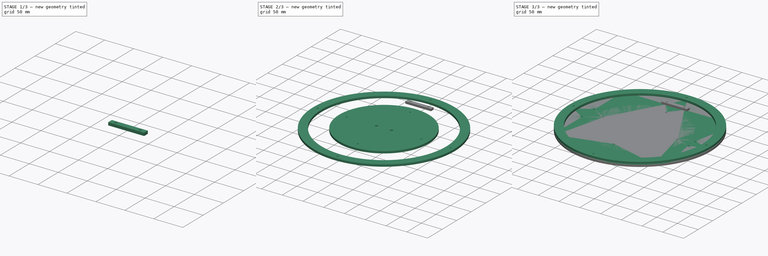
[diagram: build sequence overview — one tinted view per stage of 3, left to right]
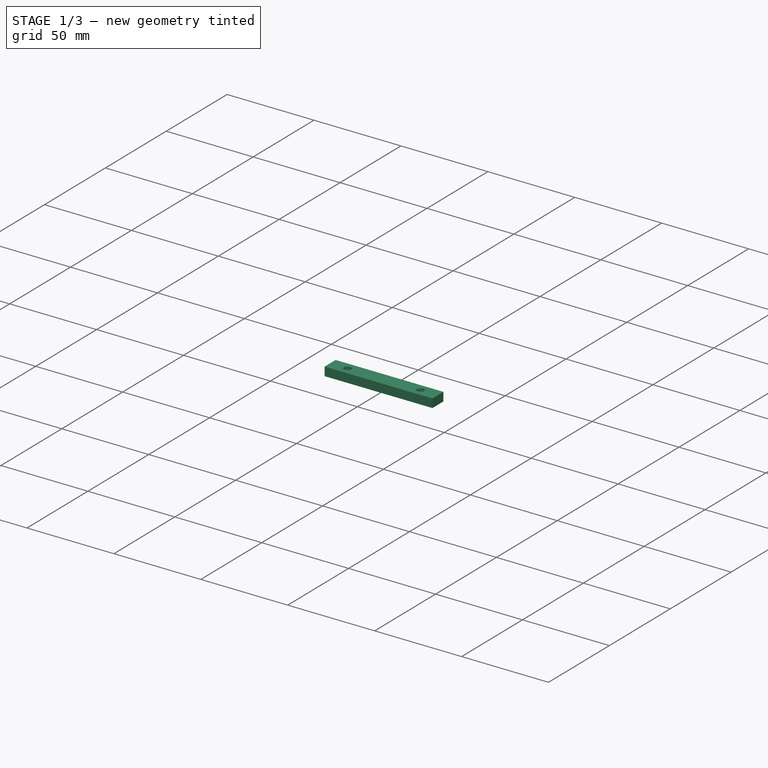
[diagram: stage 1 of 3 — iso view after this stage's code; geometry added in this stage tinted green]
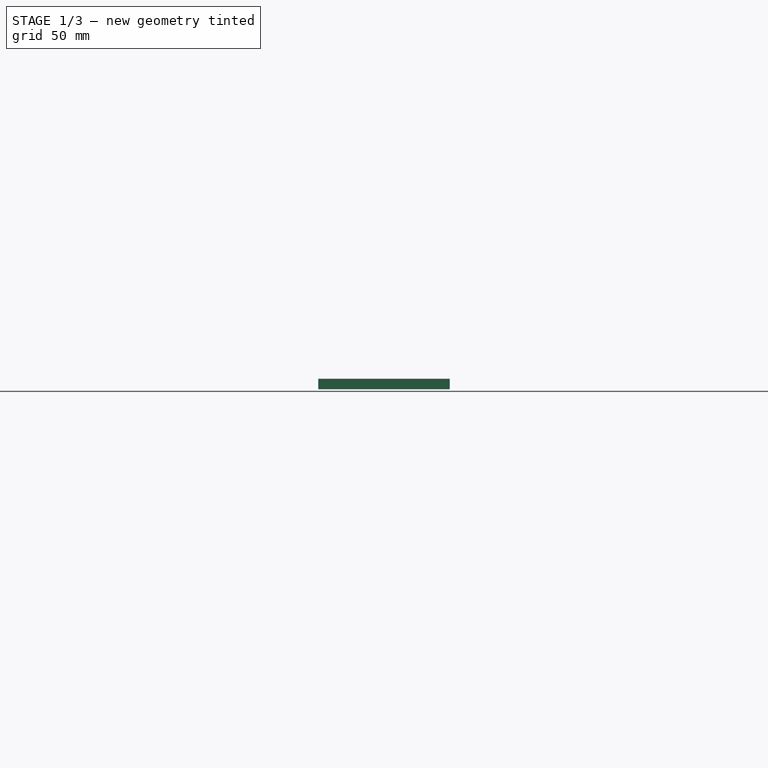
[diagram: stage 1 of 3 — front view after this stage's code; geometry added in this stage tinted green]
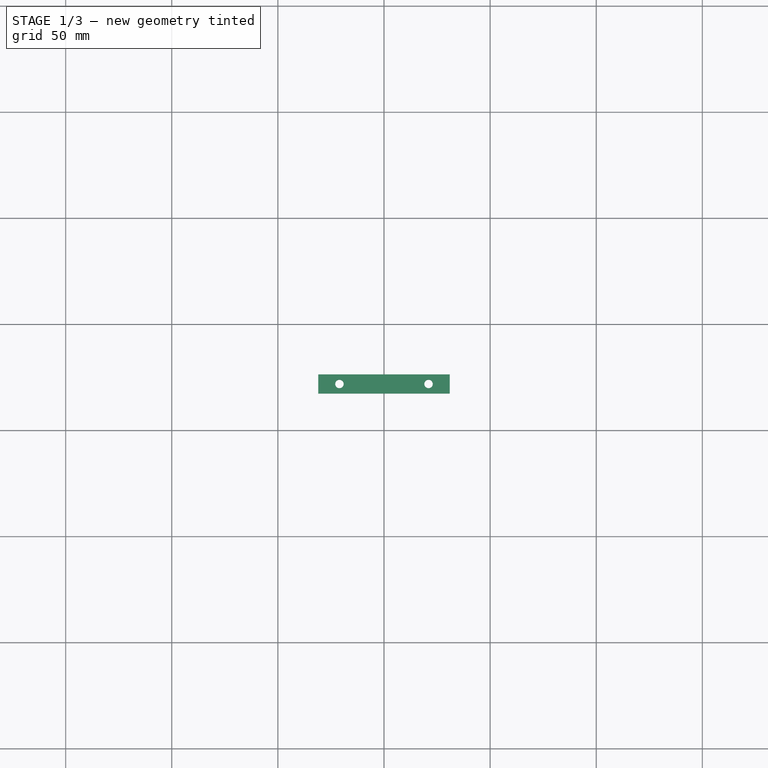
[diagram: stage 1 of 3 — top view after this stage's code; geometry added in this stage tinted green]
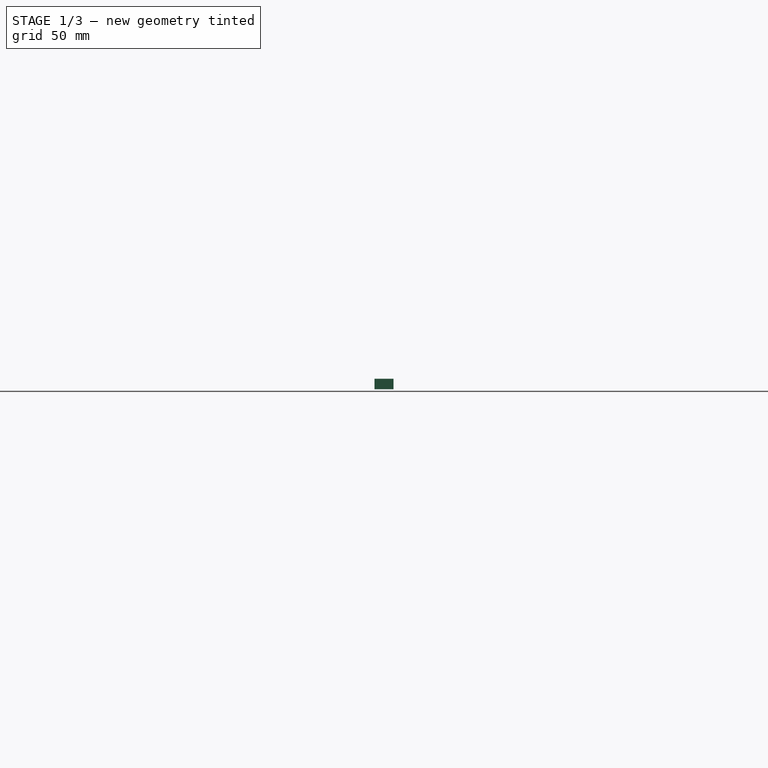
[diagram: stage 1 of 3 — right view after this stage's code; geometry added in this stage tinted green]
FCSTD DOCUMENT  (FreeCAD 0.19R21857 (Git))
Label: flexible_01
License: All rights reserved
LicenseURL: http://en.wikipedia.org/wiki/All_rights_reserved
objects: TechDraw::DrawViewPart×10, PartDesign::Body×8, Sketcher::SketchObject×6, PartDesign::Pad×4, App::DocumentObjectGroup×3, PartDesign::FeatureBase×2, Spreadsheet::Sheet×1, TechDraw::DrawSVGTemplate×1, TechDraw::DrawPage×1
note: 24 computed .brp shape members not serialized (recipe doc carries the construction recipe); baked Part::Feature solids carry a one-line shape summary decoded from their .brp

FEATURE [PartDesign::Body] Body004  label="layer_01"
  BaseFeature = -> Body
  Group = -> [Clone001]
  Origin = -> Origin004
  Placement = pos=(0,0,4) rot=(0,0,1;0rad)
  Tip = -> Clone001
FEATURE [App::DocumentObjectGroup] Group001  label="Layers"
  Group = -> [Body,Body004]
FEATURE [Sketcher::SketchObject] Sketch003
  MapMode = 5
  Support = -> [XY_Plane006]
  expr: Constraints[6] = Spreadsheet.structure_thickness
  expr: Constraints[7] = Spreadsheet.structure_width - Spreadsheet.structure_perf_width * 2
  expr: Constraints[11] = Spreadsheet.mold_hole_dia
  expr: Constraints[14] = (Spreadsheet.structure_width - Spreadsheet.structure_perf_width * 2) / 2 - Spreadsheet.board_structure_spacing / 2
  expr: Constraints[15] = (Spreadsheet.structure_width - Spreadsheet.structure_perf_width * 2) / 2 - Spreadsheet.board_structure_spacing / 2
  sketch-geometry (6):
    g0: LineSegment StartX=-31 StartY=4.5 StartZ=0 EndX=31 EndY=4.5 EndZ=0
    g1: LineSegment StartX=31 StartY=4.5 StartZ=0 EndX=31 EndY=-4.5 EndZ=0
    g2: LineSegment StartX=31 StartY=-4.5 StartZ=0 EndX=-31 EndY=-4.5 EndZ=0
    g3: LineSegment StartX=-31 StartY=-4.5 StartZ=0 EndX=-31 EndY=4.5 EndZ=0
    g4: Circle CenterX=-21 CenterY=0 CenterZ=0 NormalX=0 NormalY=0 NormalZ=1 AngleXU=0 Radius=2
    g5: Circle CenterX=21 CenterY=0 CenterZ=0 NormalX=0 NormalY=0 NormalZ=1 AngleXU=0 Radius=2
  constraints (16):
    c: Coincident(g0,g1)
    c: Coincident(g1,g2)
    c: Coincident(g2,g3)
    c: Coincident(g3,g0)
    c: Horizontal(g0)
    c: Vertical(g1)
    c: DistanceY(g3,g3) = 9
    c: DistanceX(g0,g0) = 62
    c: Symmetric(g2,g0,g-1)
    c: Symmetric(g2,g1,g-2)
    c: PointOnObject(g4,g-1)
    c: Diameter(g4) = 4
    c: PointOnObject(g5,g-1)
    c: Equal(g5,g4)
    c: DistanceX(g4,g-1) = 21
    c: DistanceX(g-1,g5) = 21
FEATURE [PartDesign::Pad] Pad003
  Length = 5
  Length2 = 100
  Profile = -> Sketch003
  Type = 0
  expr: Length = Spreadsheet.board_thickness
FEATURE [PartDesign::Body] Body006  label="hole_01_01"
  Group = -> [Sketch003,Pad003]
  Origin = -> Origin006
  Placement = pos=(0,121.9,5) rot=(0,0,1;0rad)
  Tip = -> Pad003
  expr: .Placement.Base.y = Spreadsheet.board_dia / 2 - Spreadsheet.custom_padding_01 - Spreadsheet.structure_perf_width / 2
FEATURE [PartDesign::FeatureBase] Clone
  BaseFeature = -> Body006
  Placement = pos=(0,121.9,5) rot=(0,0,1;0rad)
FEATURE [PartDesign::Body] Body007  label="hole_01_02"
  BaseFeature = -> Body006
  Group = -> [Clone]
  Origin = -> Origin007
  Placement = pos=(0,0,5) rot=(0,0,1;0rad)
  Tip = -> Clone
FEATURE [App::DocumentObjectGroup] Group002  label="Holes"
  Group = -> [Body006,Body007]
FEATURE [Sketcher::SketchObject] Sketch004
  MapMode = 5
  Support = -> [XY_Plane008]
  expr: Constraints[9] = Spreadsheet.mold_hole_dia
  sketch-geometry (5):
    g0: LineSegment StartX=-5 StartY=5 StartZ=0 EndX=5 EndY=5 EndZ=0
    g1: LineSegment StartX=5 StartY=5 StartZ=0 EndX=5 EndY=-5 EndZ=0
    g2: LineSegment StartX=5 StartY=-5 StartZ=0 EndX=-5 EndY=-5 EndZ=0
    g3: LineSegment StartX=-5 StartY=-5 StartZ=0 EndX=-5 EndY=5 EndZ=0
    g4: Circle CenterX=0 CenterY=0 CenterZ=0 NormalX=0 NormalY=0 NormalZ=1 AngleXU=0 Radius=2
  constraints (12):
    c: Coincident(g0,g1)
    c: Coincident(g1,g2)
    c: Coincident(g2,g3)
    c: Coincident(g3,g0)
    c: Horizontal(g0)
    c: Vertical(g3)
    c: DistanceX(g0,g0) = 10
    c: DistanceY(g3,g3) = 10
    c: Coincident(g4,g-1)
    c: Diameter(g4) = 4
    c: Symmetric(g2,g1,g-2)
    c: Symmetric(g0,g1,g-1)
FEATURE [PartDesign::Body] Body008  label="test-hole-01"
  Group = -> [Sketch004]
  Origin = -> Origin008
FEATURE [Sketcher::SketchObject] Sketch005
  MapMode = 5
  Support = -> [XY_Plane009]
  expr: Constraints[1] = Spreadsheet.disk_hole_dia
  sketch-geometry (5):
    g0: Circle CenterX=0 CenterY=0 CenterZ=0 NormalX=0 NormalY=0 NormalZ=1 AngleXU=0 Radius=3
    g1: LineSegment StartX=-5 StartY=5 StartZ=0 EndX=5 EndY=5 EndZ=0
    g2: LineSegment StartX=5 StartY=5 StartZ=0 EndX=5 EndY=-5 EndZ=0
    g3: LineSegment StartX=5 StartY=-5 StartZ=0 EndX=-5 EndY=-5 EndZ=0
    g4: LineSegment StartX=-5 StartY=-5 StartZ=0 EndX=-5 EndY=5 EndZ=0
  constraints (12):
    c: Coincident(g0,g-1)
    c: Diameter(g0) = 6
    c: Coincident(g1,g2)
    c: Coincident(g2,g3)
    c: Coincident(g3,g4)
    c: Coincident(g4,g1)
    c: Horizontal(g1)
    c: Vertical(g4)
    c: DistanceX(g1,g1) = 10
    c: DistanceY(g4,g4) = 10
    c: Symmetric(g3,g2,g-2)
    c: Symmetric(g1,g2,g-1)
FEATURE [PartDesign::Body] Body009  label="test-hole-02"
  Group = -> [Sketch005]
  Origin = -> Origin009
FEATURE [TechDraw::DrawSVGTemplate] Template001
  Height = 600
  Orientation = 1
  Width = 1000
FEATURE [TechDraw::DrawViewPart] View
  CoarseView = false
  Direction = (0,0,1)
  Focus = 100
  HardHidden = false
  IsoCount = 0
  IsoHidden = false
  IsoVisible = false
  LockPosition = false
  Perspective = false
  Rotation = 0
  ScaleType = 0
  SeamHidden = false
  SeamVisible = true
  SmoothHidden = false
  SmoothVisible = true
  Source = -> [Body001]
  X = 186.827
  XDirection = (1,0,0)
  Y = 418.676
FEATURE [TechDraw::DrawViewPart] View002
  CoarseView = false
  Direction = (0,0,1)
  Focus = 100
  HardHidden = false
  IsoCount = 0
  IsoHidden = false
  IsoVisible = false
  LockPosition = false
  Perspective = false
  Rotation = 0
  ScaleType = 0
  SeamHidden = false
  SeamVisible = true
  SmoothHidden = false
  SmoothVisible = true
  Source = -> [Group001]
  X = 805.481
  XDirection = (1,0,0)
  Y = 418.676
FEATURE [TechDraw::DrawViewPart] View003
  CoarseView = false
  Direction = (0,0,1)
  Focus = 100
  HardHidden = false
  IsoCount = 0
  IsoHidden = false
  IsoVisible = false
  LockPosition = false
  Perspective = false
  Rotation = 0
  ScaleType = 0
  SeamHidden = false
  SeamVisible = true
  SmoothHidden = false
  SmoothVisible = true
  Source = -> [Group001]
  X = 495.605
  XDirection = (1,0,0)
  Y = 193.411
FEATURE [TechDraw::DrawViewPart] View004
  CoarseView = false
  Direction = (0,0,1)
  Focus = 100
  HardHidden = false
  IsoCount = 0
  IsoHidden = false
  IsoVisible = false
  LockPosition = false
  Perspective = false
  Rotation = 0
  ScaleType = 0
  SeamHidden = false
  SeamVisible = true
  SmoothHidden = false
  SmoothVisible = true
  Source = -> [Group]
  X = 808.777
  XDirection = (1,0,0)
  Y = 418.676
FEATURE [TechDraw::DrawViewPart] View005
  CoarseView = false
  Direction = (0,0,1)
  Focus = 100
  HardHidden = false
  IsoCount = 0
  IsoHidden = false
  IsoVisible = false
  LockPosition = false
  Perspective = false
  Rotation = 0
  ScaleType = 0
  SeamHidden = false
  SeamVisible = true
  SmoothHidden = false
  SmoothVisible = true
  Source = -> [Group002]
  X = 218.327
  XDirection = (1,0,0)
  Y = 191.664
FEATURE [TechDraw::DrawViewPart] View006
  CoarseView = false
  Direction = (0,0,1)
  Focus = 100
  HardHidden = false
  IsoCount = 0
  IsoHidden = false
  IsoVisible = false
  LockPosition = false
  Perspective = false
  Rotation = 0
  ScaleType = 0
  SeamHidden = false
  SeamVisible = true
  SmoothHidden = false
  SmoothVisible = true
  Source = -> [Group002]
  X = 142.492
  XDirection = (1,0,0)
  Y = 192.868
FEATURE [TechDraw::DrawViewPart] View007
  CoarseView = false
  Direction = (0,0,1)
  Focus = 100
  HardHidden = false
  IsoCount = 0
  IsoHidden = false
  IsoVisible = false
  LockPosition = false
  Perspective = false
  Rotation = 0
  ScaleType = 0
  SeamHidden = false
  SeamVisible = true
  SmoothHidden = false
  SmoothVisible = true
  Source = -> [Group002]
  X = 62.2825
  XDirection = (1,0,0)
  Y = 191.664
FEATURE [TechDraw::DrawViewPart] View008
  CoarseView = false
  Direction = (0,0,1)
  Focus = 100
  HardHidden = false
  IsoCount = 0
  IsoHidden = false
  IsoVisible = false
  LockPosition = false
  Perspective = false
  Rotation = 0
  ScaleType = 0
  SeamHidden = false
  SeamVisible = true
  SmoothHidden = false
  SmoothVisible = true
  Source = -> [Group002]
  X = 217.196
  XDirection = (1,0,0)
  Y = 218.843
FEATURE [TechDraw::DrawViewPart] View009
  CoarseView = false
  Direction = (0,0,1)
  Focus = 100
  HardHidden = false
  IsoCount = 0
  IsoHidden = false
  IsoVisible = false
  LockPosition = false
  Perspective = false
  Rotation = 0
  ScaleType = 0
  SeamHidden = false
  SeamVisible = true
  SmoothHidden = false
  SmoothVisible = true
  Source = -> [Group002]
  X = 138.881
  XDirection = (1,0,0)
  Y = 216.943
FEATURE [TechDraw::DrawViewPart] View010
  CoarseView = false
  Direction = (0,0,1)
  Focus = 100
  HardHidden = false
  IsoCount = 0
  IsoHidden = false
  IsoVisible = false
  LockPosition = false
  Perspective = false
  Rotation = 0
  ScaleType = 0
  SeamHidden = false
  SeamVisible = true
  SmoothHidden = false
  SmoothVisible = true
  Source = -> [Group002]
  X = 63.0456
  XDirection = (1,0,0)
  Y = 216.943
FEATURE [TechDraw::DrawPage] Page001  label="structure"
  KeepUpdated = true
  NextBalloonIndex = 1
  ProjectionType = 0
  Template = -> Template001
  Views = -> [View,View002,View003,View004,View005,View006,View007,View008,View009,View010]
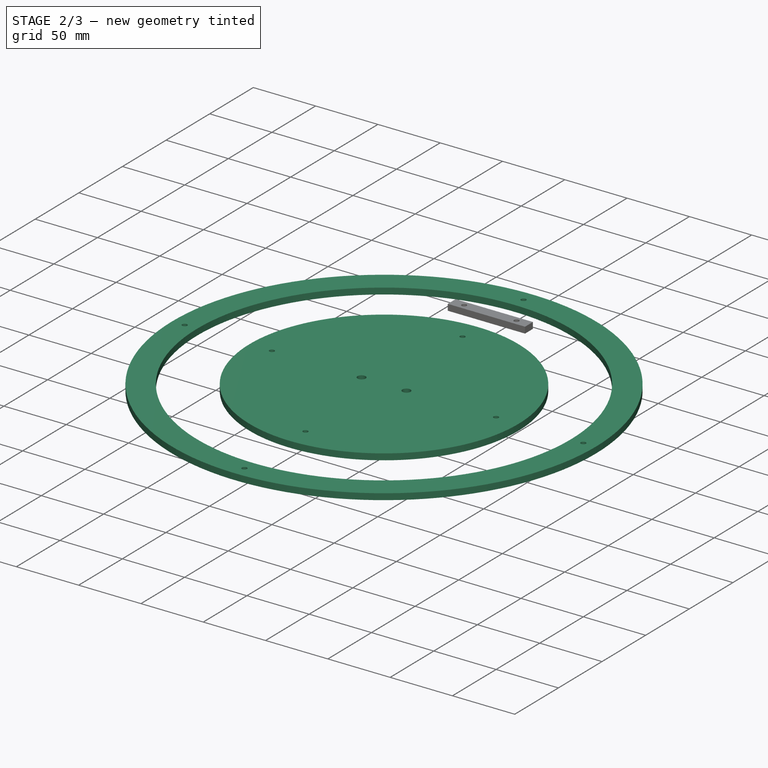
[diagram: stage 2 of 3 — iso view after this stage's code; geometry added in this stage tinted green]
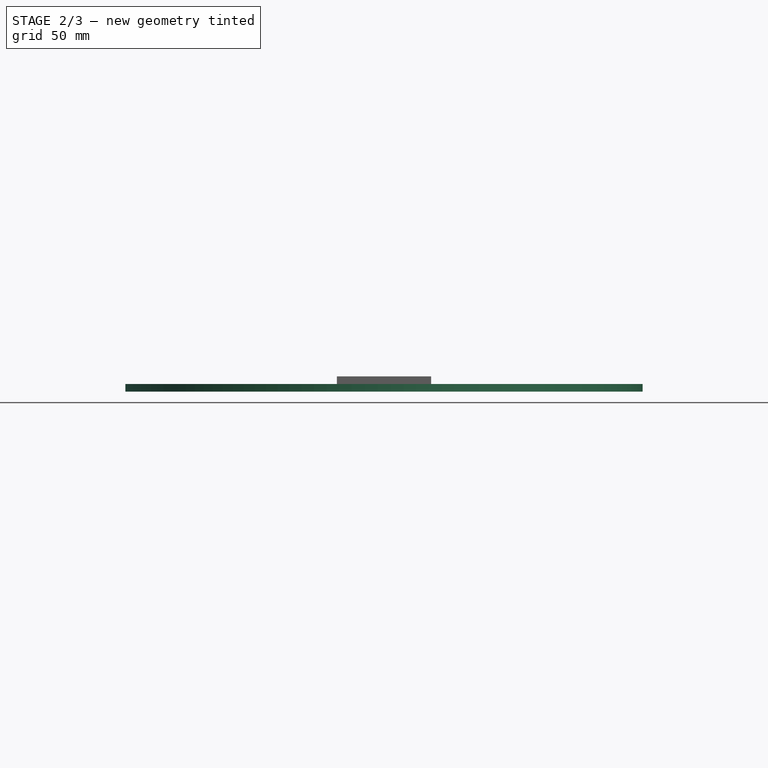
[diagram: stage 2 of 3 — front view after this stage's code; geometry added in this stage tinted green]
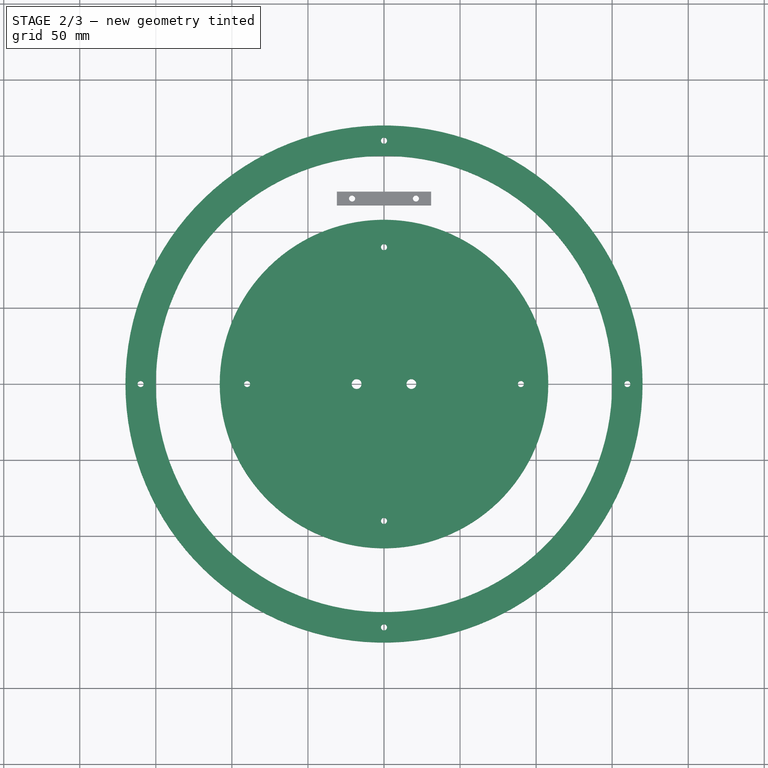
[diagram: stage 2 of 3 — top view after this stage's code; geometry added in this stage tinted green]
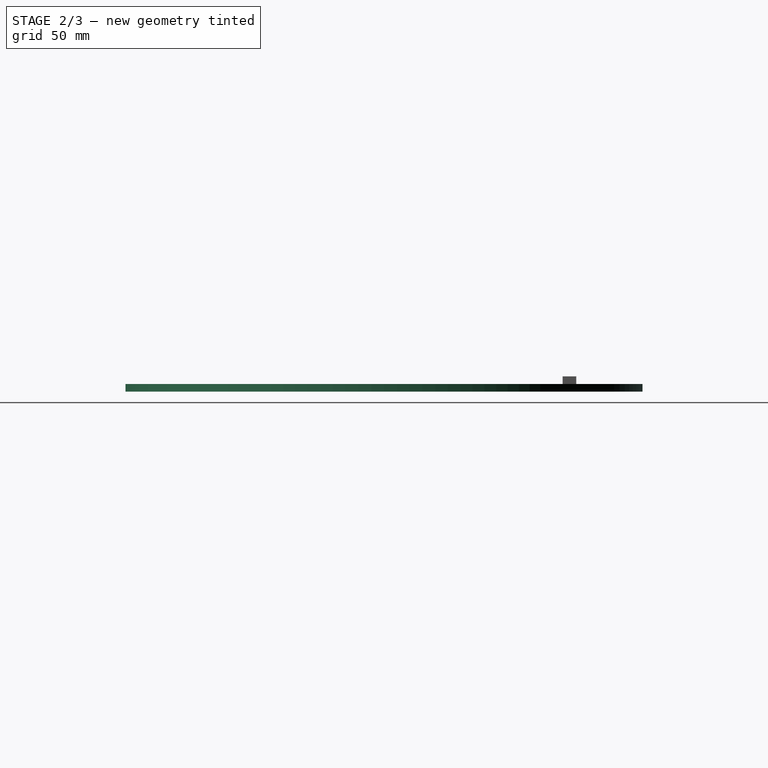
[diagram: stage 2 of 3 — right view after this stage's code; geometry added in this stage tinted green]
FEATURE [Sketcher::SketchObject] Sketch
  MapMode = 5
  Support = -> [XY_Plane]
  expr: Constraints[1] = Spreadsheet.board_dia
  expr: Constraints[11] = Spreadsheet.board_dia / 2 + Spreadsheet.mold_width / 2
  expr: Constraints[3] = Spreadsheet.board_dia + Spreadsheet.mold_width * 2
  expr: Constraints[5] = Spreadsheet.mold_hole_dia
  expr: Constraints[24] = Spreadsheet.board_dia / 2 + Spreadsheet.mold_width / 2
  sketch-geometry (10):
    g0: Circle CenterX=0 CenterY=0 CenterZ=0 NormalX=0 NormalY=0 NormalZ=1 AngleXU=0 Radius=150
    g1: Circle CenterX=0 CenterY=0 CenterZ=0 NormalX=0 NormalY=0 NormalZ=1 AngleXU=0 Radius=170
    g2: Circle CenterX=0 CenterY=160 CenterZ=0 NormalX=0 NormalY=0 NormalZ=1 AngleXU=0 Radius=2
    g3: Circle CenterX=160 CenterY=0 CenterZ=0 NormalX=0 NormalY=0 NormalZ=1 AngleXU=0 Radius=2
    g4: Circle CenterX=0 CenterY=-160 CenterZ=0 NormalX=0 NormalY=0 NormalZ=1 AngleXU=0 Radius=2
    g5: Circle CenterX=-160 CenterY=0 CenterZ=0 NormalX=0 NormalY=0 NormalZ=1 AngleXU=0 Radius=2
    g6: LineSegment [constr] StartX=0 StartY=0 StartZ=0 EndX=0 EndY=160 EndZ=0
    g7: LineSegment [constr] StartX=0 StartY=-160 StartZ=0 EndX=0 EndY=0 EndZ=0
    g8: LineSegment [constr] StartX=0 StartY=0 StartZ=0 EndX=160 EndY=0 EndZ=0
    g9: LineSegment [constr] StartX=0 StartY=0 StartZ=0 EndX=-160 EndY=0 EndZ=0
  constraints (26):
    c: Coincident(g0,g-1)
    c: Diameter(g0) = 300
    c: Coincident(g1,g0)
    c: Diameter(g1) = 340
    c: PointOnObject(g2,g-2)
    c: Diameter(g2) = 4
    c: PointOnObject(g3,g-1)
    c: PointOnObject(g4,g-2)
    c: PointOnObject(g5,g-1)
    c: Coincident(g6,g0)
    c: Coincident(g6,g2)
    c: DistanceY(g6,g6) = 160
    c: Equal(g2,g5)
    c: Equal(g5,g4)
    c: Equal(g4,g3)
    c: Coincident(g7,g4)
    c: Coincident(g7,g0)
    c: Coincident(g8,g0)
    c: Coincident(g8,g3)
    c: Horizontal(g8)
    c: Coincident(g9,g0)
    c: Coincident(g9,g5)
    c: Horizontal(g9)
    c: Equal(g6,g7)
    c: DistanceX(g8,g8) = 160
    c: Equal(g8,g9)
FEATURE [Spreadsheet::Sheet] Spreadsheet
  cells = A1=board_dia; B1(board_dia)==300mm; A2=board_thickness; B2(board_thickness)==5mm; A3=board_structure_spacing; B3(board_structure_spacing)==20mm; A4=custom_padding_01; B4(custom_padding_01)==board_structure_spacing + 3.6mm; A5=tube_dia; B5(tube_dia)==4mm; A6=structure_thickness; B6(structure_thickness)==9mm; A7=structure_width; B7(structure_width)==80mm; A8=structure_perf_width; B8(structure_perf_width)==structure_thickness; A9=mold_width; B9(mold_width)==20mm; A10=mold_hole_dia; B10(mold_hole_dia)==4mm; A11=disk_hole_dia; B11(disk_hole_dia)==6mm
FEATURE [PartDesign::Pad] Pad
  Length = 5
  Length2 = 100
  Profile = -> Sketch
  Type = 0
  expr: Length = Spreadsheet.board_thickness
FEATURE [PartDesign::Body] Body001  label="bottom"
  Group = -> [Sketch001,Pad001]
  Origin = -> Origin001
  Tip = -> Pad001
FEATURE [Sketcher::SketchObject] Sketch002
  MapMode = 5
  Support = -> [XY_Plane002]
  expr: Constraints[27] = Spreadsheet.disk_hole_dia * 3
  expr: Constraints[26] = Spreadsheet.disk_hole_dia * 3
  expr: Constraints[23] = Spreadsheet.disk_hole_dia + 0.5mm
  expr: Constraints[1] = Spreadsheet.board_dia / 3 * 2 + 16mm
  expr: Constraints[6] = Spreadsheet.mold_hole_dia
  expr: Constraints[18] = Spreadsheet.board_dia / 2 / 3 * 2 - Spreadsheet.board_structure_spacing / 2
  sketch-geometry (11):
    g0: Circle CenterX=0 CenterY=0 CenterZ=0 NormalX=0 NormalY=0 NormalZ=1 AngleXU=0 Radius=108
    g1: Circle CenterX=0 CenterY=90 CenterZ=0 NormalX=0 NormalY=0 NormalZ=1 AngleXU=0 Radius=2
    g2: Circle CenterX=-90 CenterY=0 CenterZ=0 NormalX=0 NormalY=0 NormalZ=1 AngleXU=0 Radius=2
    g3: Circle CenterX=0 CenterY=-90 CenterZ=0 NormalX=0 NormalY=0 NormalZ=1 AngleXU=0 Radius=2
    g4: Circle CenterX=90 CenterY=0 CenterZ=0 NormalX=0 NormalY=0 NormalZ=1 AngleXU=0 Radius=2
    g5: LineSegment [constr] StartX=-90 StartY=0 StartZ=0 EndX=0 EndY=0 EndZ=0
    g6: LineSegment [constr] StartX=0 StartY=0 StartZ=0 EndX=0 EndY=90 EndZ=0
    g7: LineSegment [constr] StartX=0 StartY=0 StartZ=0 EndX=90 EndY=0 EndZ=0
    g8: LineSegment [constr] StartX=0 StartY=-90 StartZ=0 EndX=0 EndY=0 EndZ=0
    g9: Circle CenterX=-18 CenterY=0 CenterZ=0 NormalX=0 NormalY=0 NormalZ=1 AngleXU=0 Radius=3.25
    g10: Circle CenterX=18 CenterY=0 CenterZ=0 NormalX=0 NormalY=0 NormalZ=1 AngleXU=0 Radius=3.25
  constraints (28):
    c: Coincident(g0,g-1)
    c: Diameter(g0) = 216
    c: PointOnObject(g1,g-2)
    c: PointOnObject(g2,g-1)
    c: PointOnObject(g3,g-2)
    c: PointOnObject(g4,g-1)
    c: Diameter(g1) = 4
    c: Equal(g2,g3)
    c: Equal(g3,g4)
    c: Equal(g4,g1)
    c: Coincident(g5,g2)
    c: Coincident(g5,g0)
    c: Coincident(g6,g0)
    c: Coincident(g6,g1)
    c: Coincident(g7,g0)
    c: Coincident(g7,g4)
    c: Coincident(g8,g3)
    c: Coincident(g8,g0)
    c: DistanceY(g6,g6) = 90
    c: Equal(g6,g8)
    c: Equal(g8,g5)
    c: Equal(g5,g7)
    c: PointOnObject(g9,g7)
    c: Diameter(g9) = 6.5
    c: PointOnObject(g10,g7)
    c: Equal(g10,g9)
    c: DistanceX(g0,g10) = 18
    c: DistanceX(g9,g0) = 18
FEATURE [PartDesign::Pad] Pad002
  Length = 5
  Length2 = 100
  Profile = -> Sketch002
  Type = 0
  expr: Length = Spreadsheet.board_thickness
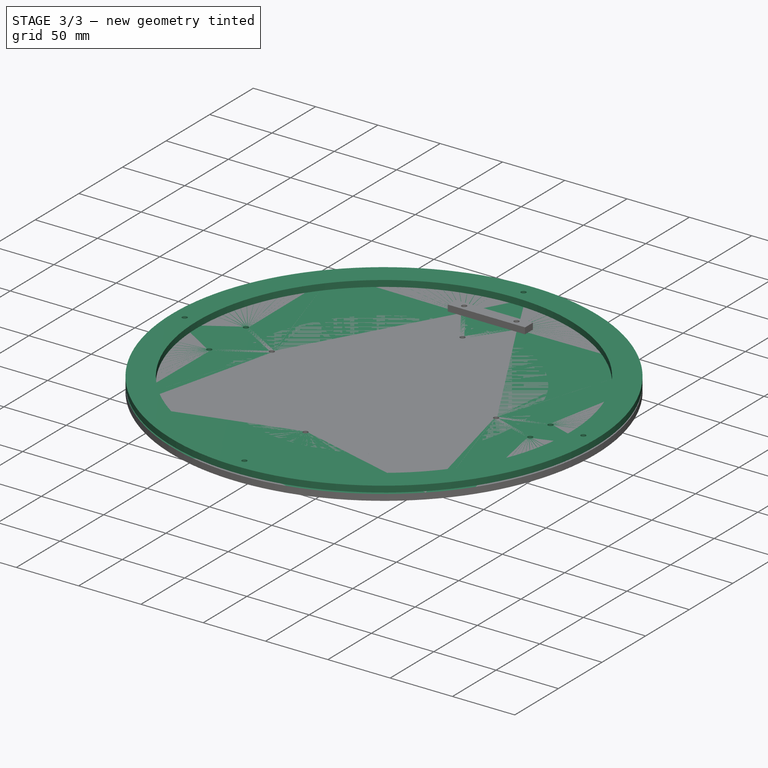
[diagram: stage 3 of 3 — iso view after this stage's code; geometry added in this stage tinted green]
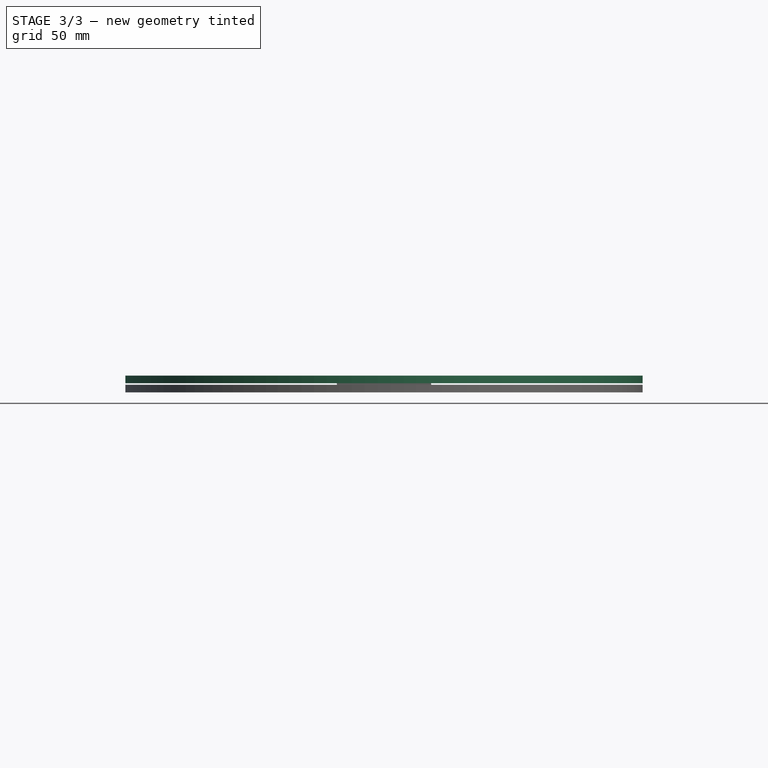
[diagram: stage 3 of 3 — front view after this stage's code; geometry added in this stage tinted green]
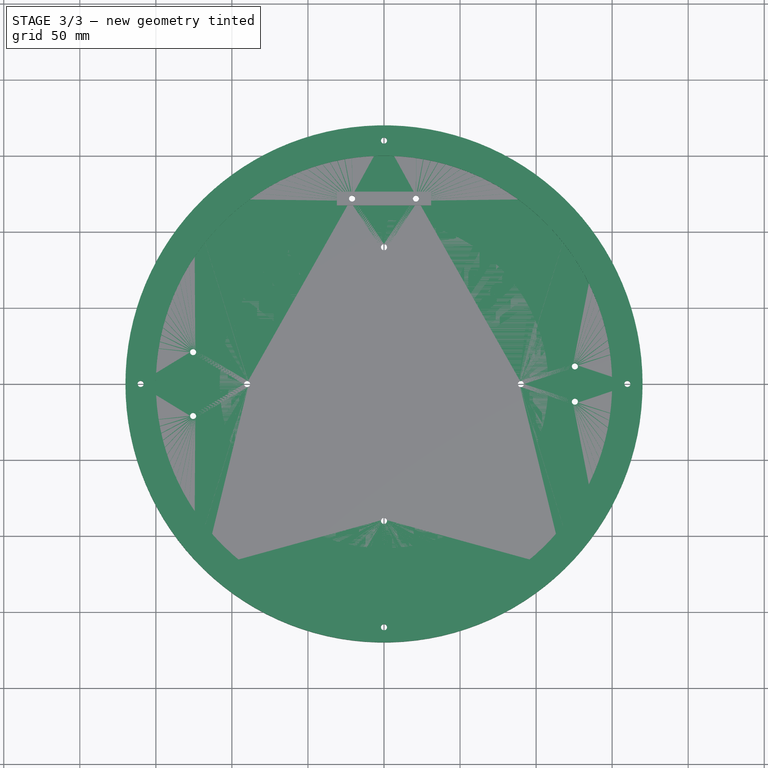
[diagram: stage 3 of 3 — top view after this stage's code; geometry added in this stage tinted green]
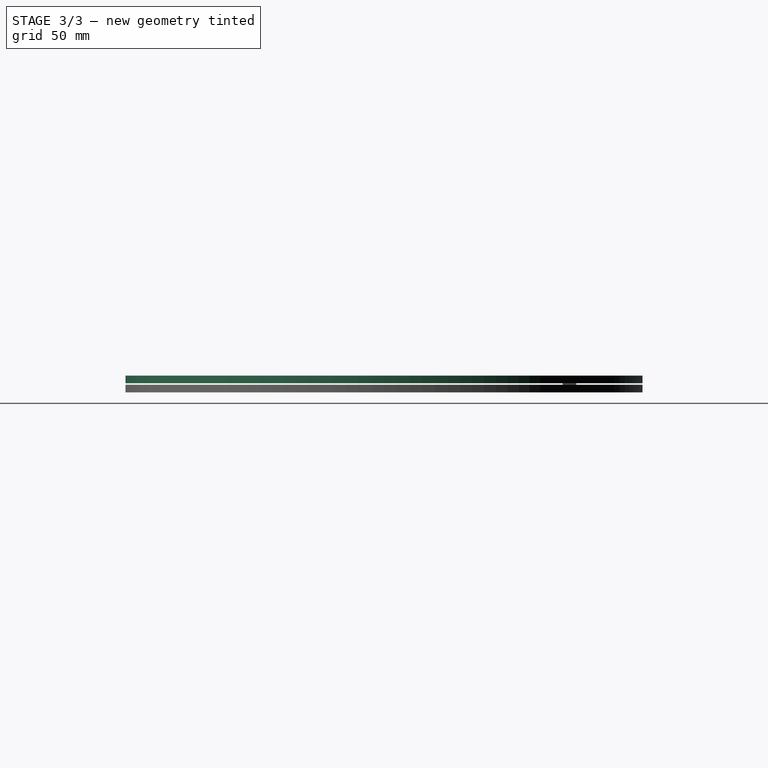
[diagram: stage 3 of 3 — right view after this stage's code; geometry added in this stage tinted green]
FEATURE [PartDesign::Body] Body  label="layer"
  Group = -> [Sketch,Pad]
  Origin = -> Origin
  Placement = pos=(0,0,5) rot=(0,0,1;0rad)
  Tip = -> Pad
FEATURE [Sketcher::SketchObject] Sketch001
  MapMode = 5
  Support = -> [XY_Plane001]
  expr: Constraints[1] = Spreadsheet.board_dia + Spreadsheet.mold_width * 2
  expr: Constraints[65] = Spreadsheet.structure_perf_width / 2
  expr: Constraints[14] = Spreadsheet.mold_hole_dia
  expr: Constraints[33] = Spreadsheet.board_dia / 2 / 3 * 2 - Spreadsheet.board_structure_spacing / 2
  expr: Constraints[20] = Spreadsheet.board_dia / 2 + Spreadsheet.mold_width / 2
  expr: Constraints[49] = Spreadsheet.mold_hole_dia
  expr: Constraints[63] = (Spreadsheet.structure_width - Spreadsheet.structure_perf_width * 2) / 2 - Spreadsheet.board_structure_spacing / 2
  expr: Constraints[44] = Spreadsheet.structure_width - Spreadsheet.structure_perf_width * 2
  expr: Constraints[48] = Spreadsheet.board_dia / 2 - Spreadsheet.custom_padding_01
  expr: Constraints[23] = Spreadsheet.board_dia / 2 / 3 * 2 - Spreadsheet.board_structure_spacing / 2
  expr: Constraints[24] = Spreadsheet.mold_hole_dia
  expr: Constraints[35] = Spreadsheet.board_dia / 2 / 3 * 2 - Spreadsheet.board_structure_spacing / 2
  expr: Constraints[18] = Spreadsheet.board_dia / 2 + Spreadsheet.mold_width / 2
  expr: Constraints[34] = Spreadsheet.board_dia / 2 / 3 * 2 - Spreadsheet.board_structure_spacing / 2
  expr: Constraints[43] = Spreadsheet.structure_perf_width
  expr: Constraints[89] = Spreadsheet.board_dia / 2 - Spreadsheet.board_structure_spacing
  expr: Constraints[92] = Spreadsheet.board_dia / 2 - Spreadsheet.board_structure_spacing
  sketch-geometry (47):
    g0: Circle CenterX=0 CenterY=0 CenterZ=0 NormalX=0 NormalY=0 NormalZ=1 AngleXU=0 Radius=170
    g1: Circle CenterX=0 CenterY=160 CenterZ=0 NormalX=0 NormalY=0 NormalZ=1 AngleXU=0 Radius=2
    g2: Circle CenterX=160 CenterY=0 CenterZ=0 NormalX=0 NormalY=0 NormalZ=1 AngleXU=0 Radius=2
    g3: Circle CenterX=-160 CenterY=0 CenterZ=0 NormalX=0 NormalY=0 NormalZ=1 AngleXU=0 Radius=2
    g4: Circle CenterX=0 CenterY=-160 CenterZ=0 NormalX=0 NormalY=0 NormalZ=1 AngleXU=0 Radius=2
    g5: LineSegment [constr] StartX=0 StartY=160 StartZ=0 EndX=0 EndY=0 EndZ=0
    g6: LineSegment [constr] StartX=0 StartY=0 StartZ=0 EndX=0 EndY=-160 EndZ=0
    g7: LineSegment [constr] StartX=0 StartY=0 StartZ=0 EndX=160 EndY=0 EndZ=0
    g8: LineSegment [constr] StartX=-160 StartY=0 StartZ=0 EndX=0 EndY=0 EndZ=0
    g9: Circle CenterX=0 CenterY=90 CenterZ=0 NormalX=0 NormalY=0 NormalZ=1 AngleXU=0 Radius=2
    g10: Circle CenterX=90 CenterY=0 CenterZ=0 NormalX=0 NormalY=0 NormalZ=1 AngleXU=0 Radius=2
    g11: Circle CenterX=0 CenterY=-90 CenterZ=0 NormalX=0 NormalY=0 NormalZ=1 AngleXU=0 Radius=2
    g12: Circle CenterX=-90 CenterY=0 CenterZ=0 NormalX=0 NormalY=0 NormalZ=1 AngleXU=0 Radius=2
    g13: LineSegment [constr] StartX=-90 StartY=0 StartZ=0 EndX=0 EndY=0 EndZ=0
    g14: LineSegment [constr] StartX=-31 StartY=126.4 StartZ=0 EndX=31 EndY=126.4 EndZ=0
    g15: LineSegment [constr] StartX=31 StartY=126.4 StartZ=0 EndX=31 EndY=117.4 EndZ=0
    g16: LineSegment [constr] StartX=31 StartY=117.4 StartZ=0 EndX=-31 EndY=117.4 EndZ=0
    g17: LineSegment [constr] StartX=-31 StartY=117.4 StartZ=0 EndX=-31 EndY=126.4 EndZ=0
    g18: GeomPoint X=0 Y=126.4 Z=0
    g19: Circle CenterX=-21 CenterY=121.9 CenterZ=0 NormalX=0 NormalY=0 NormalZ=1 AngleXU=0 Radius=2
    g20: Circle CenterX=21 CenterY=121.9 CenterZ=0 NormalX=0 NormalY=0 NormalZ=1 AngleXU=0 Radius=2
    g21: LineSegment [constr] StartX=-21 StartY=121.9 StartZ=0 EndX=0 EndY=121.9 EndZ=0
    g22: LineSegment [constr] StartX=-21 StartY=121.9 StartZ=0 EndX=-21 EndY=117.4 EndZ=0
    g23: LineSegment [constr] StartX=21 StartY=121.9 StartZ=0 EndX=21 EndY=117.4 EndZ=0
    g24: LineSegment [constr] StartX=21 StartY=121.9 StartZ=0 EndX=0 EndY=121.9 EndZ=0
    g25: LineSegment [constr] StartX=-130 StartY=31 StartZ=0 EndX=-121 EndY=31 EndZ=0
    g26: LineSegment [constr] StartX=-121 StartY=31 StartZ=0 EndX=-121 EndY=-31 EndZ=0
    g27: LineSegment [constr] StartX=-121 StartY=-31 StartZ=0 EndX=-130 EndY=-31 EndZ=0
    g28: LineSegment [constr] StartX=-130 StartY=-31 StartZ=0 EndX=-130 EndY=31 EndZ=0
    g29: LineSegment [constr] StartX=121 StartY=31 StartZ=0 EndX=130 EndY=31 EndZ=0
    g30: LineSegment [constr] StartX=130 StartY=31 StartZ=0 EndX=130 EndY=-31 EndZ=0
    g31: LineSegment [constr] StartX=130 StartY=-31 StartZ=0 EndX=121 EndY=-31 EndZ=0
    g32: LineSegment [constr] StartX=121 StartY=-31 StartZ=0 EndX=121 EndY=31 EndZ=0
    g33: GeomPoint X=-130 Y=0 Z=0
    g34: GeomPoint X=130 Y=0 Z=0
    g35: Circle CenterX=-125.5 CenterY=-21 CenterZ=0 NormalX=0 NormalY=0 NormalZ=1 AngleXU=0 Radius=2
    g36: Circle CenterX=125.5 CenterY=11.6022 CenterZ=0 NormalX=0 NormalY=0 NormalZ=1 AngleXU=0 Radius=2
    g37: Circle CenterX=125.5 CenterY=-11.6022 CenterZ=0 NormalX=0 NormalY=0 NormalZ=1 AngleXU=0 Radius=2
    g38: Circle CenterX=-125.5 CenterY=21 CenterZ=0 NormalX=0 NormalY=0 NormalZ=1 AngleXU=0 Radius=2
    g39: LineSegment [constr] StartX=-125.5 StartY=21 StartZ=0 EndX=-130 EndY=21 EndZ=0
    g40: LineSegment [constr] StartX=-125.5 StartY=21 StartZ=0 EndX=-125.5 EndY=0 EndZ=0
    g41: LineSegment [constr] StartX=-125.5 StartY=-21 StartZ=0 EndX=-130 EndY=-21 EndZ=0
    g42: LineSegment [constr] StartX=-125.5 StartY=-21 StartZ=0 EndX=-125.5 EndY=0 EndZ=0
    g43: LineSegment [constr] StartX=125.5 StartY=11.6022 StartZ=0 EndX=121 EndY=11.6022 EndZ=0
    g44: LineSegment [constr] StartX=125.5 StartY=11.6022 StartZ=0 EndX=125.5 EndY=0 EndZ=0
    g45: LineSegment [constr] StartX=125.5 StartY=-11.6022 StartZ=0 EndX=121 EndY=-11.6022 EndZ=0
    g46: LineSegment [constr] StartX=125.5 StartY=0 StartZ=0 EndX=125.5 EndY=-11.6022 EndZ=0
  constraints (127):
    c: Coincident(g0,g-1)
    c: Diameter(g0) = 340
    c: PointOnObject(g1,g-2)
    c: PointOnObject(g2,g-1)
    c: PointOnObject(g3,g-1)
    c: PointOnObject(g4,g-2)
    c: Coincident(g5,g1)
    c: Coincident(g5,g0)
    c: Coincident(g6,g0)
    c: Coincident(g6,g4)
    c: Coincident(g7,g0)
    c: Coincident(g7,g2)
    c: Coincident(g8,g3)
    c: Coincident(g8,g0)
    c: Diameter(g1) = 4
    c: Equal(g3,g4)
    c: Equal(g4,g2)
    c: Equal(g2,g1)
    c: DistanceY(g5,g5) = 160
    c: Equal(g5,g6)
    c: DistanceX(g8,g8) = 160
    c: Equal(g7,g8)
    c: PointOnObject(g9,g5)
    c: DistanceY(g0,g9) = 90
    c: Diameter(g9) = 4
    c: PointOnObject(g10,g7)
    c: PointOnObject(g11,g6)
    c: PointOnObject(g12,g8)
    c: Equal(g12,g10)
    c: Equal(g10,g11)
    c: Equal(g11,g9)
    c: Coincident(g13,g12)
    c: Coincident(g13,g0)
    c: DistanceX(g12,g0) = 90
    c: DistanceX(g0,g10) = 90
    c: DistanceY(g11,g0) = 90
    c: Coincident(g14,g15)
    c: Coincident(g15,g16)
    c: Coincident(g16,g17)
    c: Coincident(g17,g14)
    c: Horizontal(g14)
    c: Vertical(g15)
    c: Vertical(g17)
    c: DistanceY(g17,g17) = 9
    c: DistanceX(g14,g14) = 62
    c: Symmetric(g16,g15,g5)
    c: PointOnObject(g18,g14)
    c: PointOnObject(g18,g5)
    c: DistanceY(g0,g18) = 126.4
    c: Diameter(g19) = 4
    c: Equal(g19,g20)
    c: Coincident(g21,g19)
    c: PointOnObject(g21,g5)
    c: Horizontal(g21)
    c: Coincident(g22,g19)
    c: PointOnObject(g22,g16)
    c: Vertical(g22)
    c: Coincident(g23,g20)
    c: PointOnObject(g23,g16)
    c: Vertical(g23)
    c: Coincident(g24,g20)
    c: PointOnObject(g24,g5)
    c: Horizontal(g24)
    c: DistanceX(g21,g21) = 21
    c: Equal(g24,g21)
    c: DistanceY(g22,g22) = 4.5
    c: Equal(g22,g23)
    c: Coincident(g25,g26)
    c: Coincident(g26,g27)
    c: Coincident(g27,g28)
    c: Coincident(g28,g25)
    c: Horizontal(g25)
    c: Horizontal(g27)
    c: Vertical(g26)
    c: Coincident(g29,g30)
    c: Coincident(g30,g31)
    c: Coincident(g31,g32)
    c: Coincident(g32,g29)
    c: Horizontal(g29)
    c: Horizontal(g31)
    c: Vertical(g32)
    c: Symmetric(g25,g27,g8)
    c: Equal(g17,g25)
    c: Equal(g25,g29)
    c: Equal(g32,g14)
    c: Equal(g14,g28)
    c: Symmetric(g30,g29,g7)
    c: PointOnObject(g33,g28)
    c: PointOnObject(g33,g8)
    c: DistanceX(g33,g0) = 130
    c: PointOnObject(g34,g30)
    c: PointOnObject(g34,g7)
    c: DistanceX(g0,g34) = 130
    c: Equal(g35,g19)
    c: Equal(g36,g37)
    c: Equal(g37,g19)
    c: Equal(g38,g35)
    c: Coincident(g39,g38)
    c: PointOnObject(g39,g28)
    c: Coincident(g40,g38)
    c: PointOnObject(g40,g8)
    c: Vertical(g40)
    c: Coincident(g41,g35)
    c: PointOnObject(g41,g28)
    c: Coincident(g42,g35)
    c: PointOnObject(g42,g8)
    c: Vertical(g42)
    c: Horizontal(g41)
    c: Equal(g22,g39)
    c: Equal(g39,g41)
    c: Equal(g40,g42)
    c: Equal(g42,g21)
    c: Horizontal(g39)
    c: Coincident(g43,g36)
    c: PointOnObject(g43,g32)
    c: Horizontal(g43)
    c: Coincident(g44,g36)
    c: PointOnObject(g44,g7)
    c: Vertical(g44)
    c: Coincident(g45,g37)
    c: PointOnObject(g45,g32)
    c: Horizontal(g45)
    c: Equal(g22,g43)
    c: Equal(g43,g45)
    c: Coincident(g46,g44)
    c: Coincident(g46,g37)
    c: Equal(g44,g46)
FEATURE [PartDesign::Pad] Pad001
  Length = 5
  Length2 = 100
  Profile = -> Sketch001
  Type = 0
  expr: Length = Spreadsheet.board_thickness
FEATURE [PartDesign::Body] Body002  label="disk"
  Group = -> [Sketch002,Pad002]
  Origin = -> Origin002
  Placement = pos=(0,0,5) rot=(0,0,1;0rad)
  Tip = -> Pad002
FEATURE [App::DocumentObjectGroup] Group  label="Disk"
  Group = -> [Body002]
FEATURE [PartDesign::FeatureBase] Clone001
  BaseFeature = -> Body
  Placement = pos=(0,0,6) rot=(0,0,1;0rad)
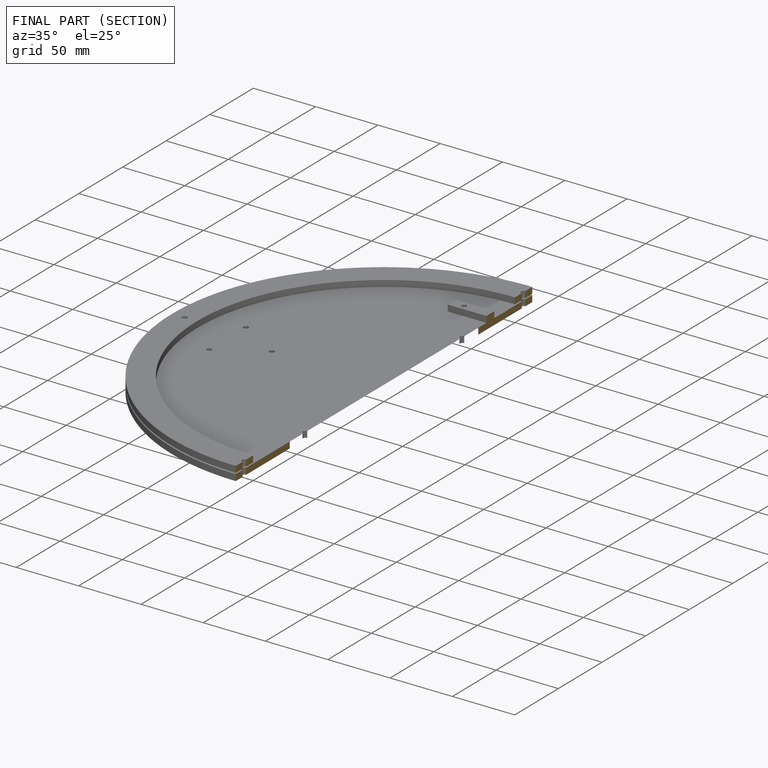
[diagram: finished part — half-section view (interior)]
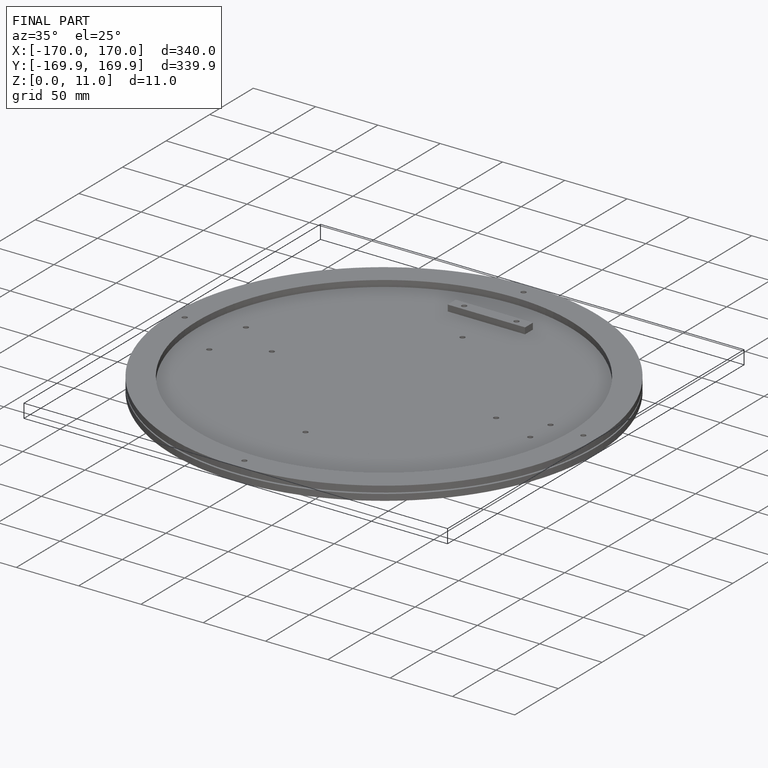
[diagram: finished part — iso view with bounding-box wireframe]
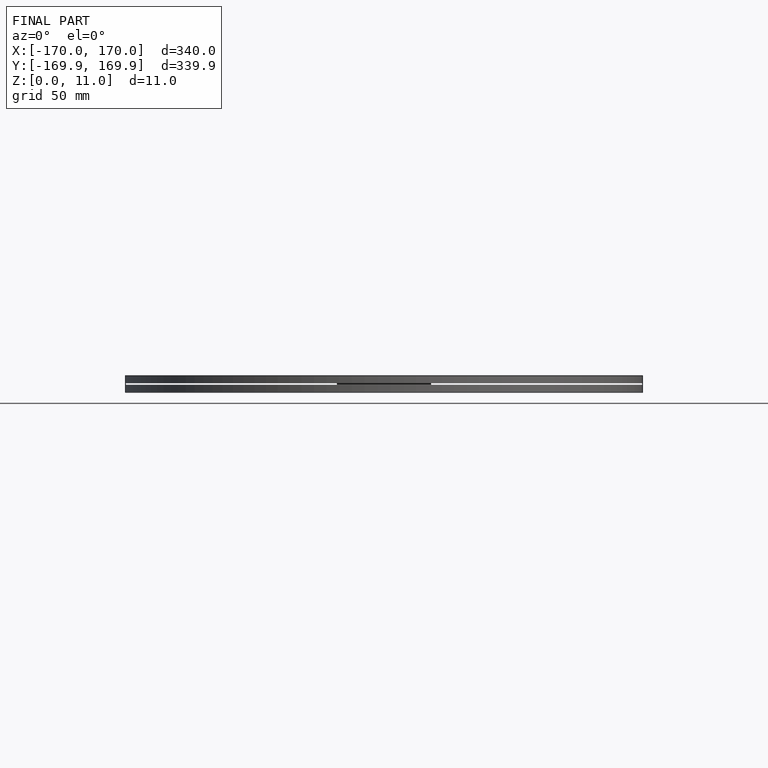
[diagram: finished part — front view with bounding-box wireframe]
